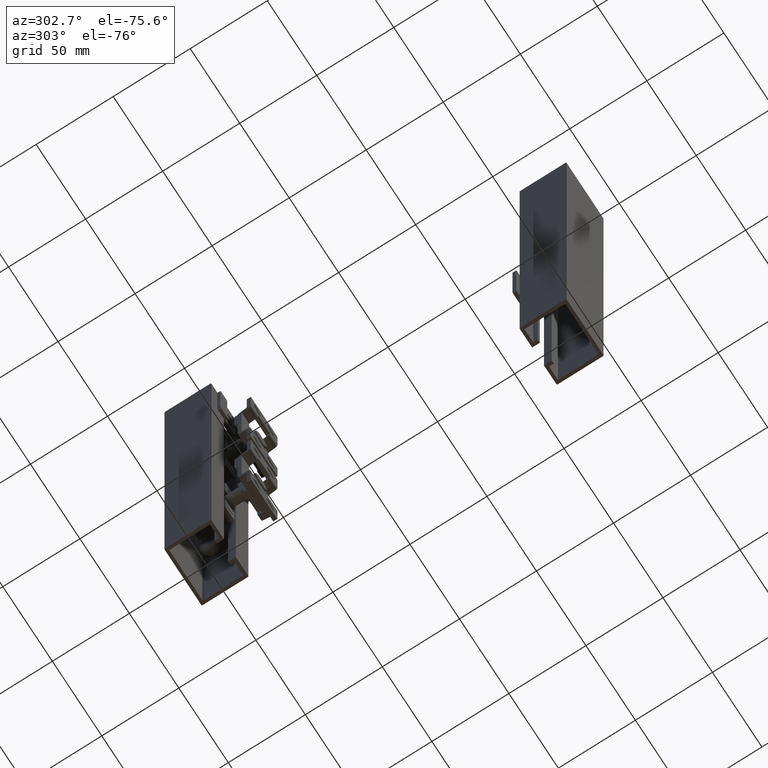
[diagram: clean part render]
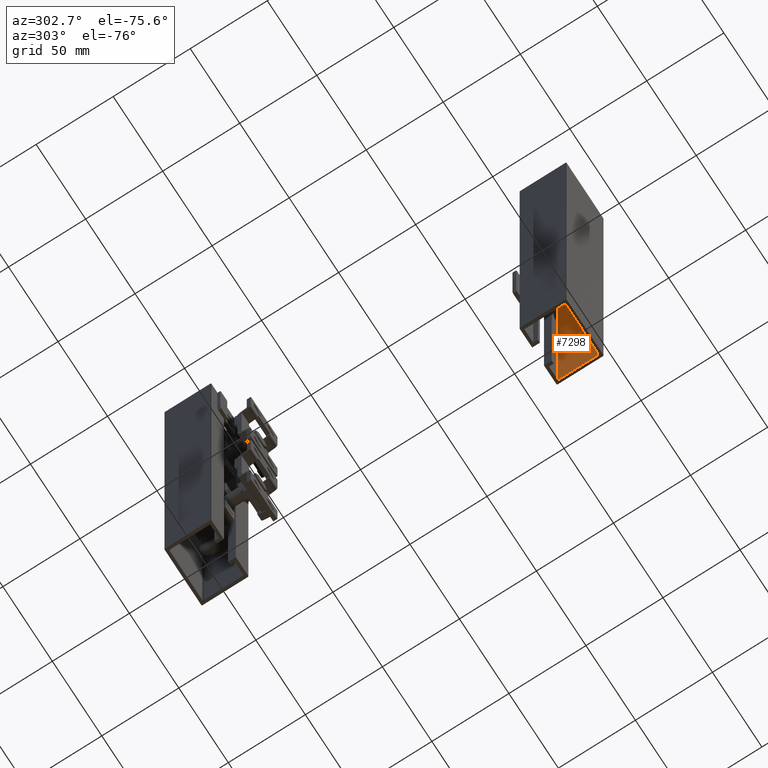
[diagram: same view with one face highlighted and labeled with its STEP entity id]
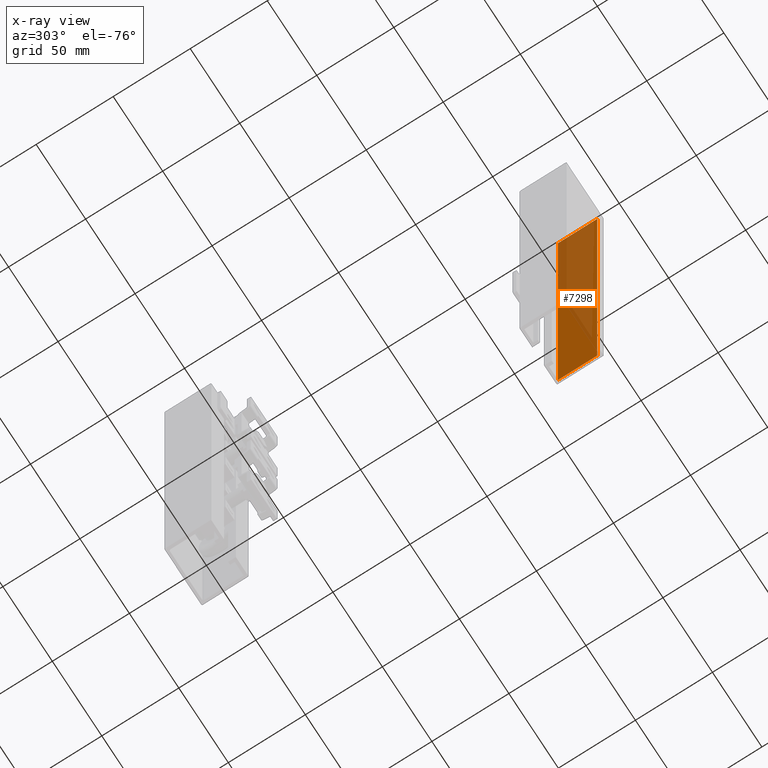
[diagram: x-ray of the same camera — body ghosted, the highlighted face saturated]
A machine part, auxiliary view. The second image highlights one B-rep face of the part: STEP entity #7298.
The next image is the same camera in x-ray: the body ghosted, the highlighted face saturated — about 57% of this face is hidden behind the body in this view.
In plain terms, the highlighted planar face has unit normal (1, 0, -0).
Its self-contained STEP definition (entity closure, byte-faithful):
#287=PLANE('',#7757);
#538=FACE_OUTER_BOUND('',#979,.T.);
#979=EDGE_LOOP('',(#5044,#5045,#5046,#5047));
#1556=LINE('',#10864,#2243);
#1558=LINE('',#10870,#2245);
#1559=LINE('',#10872,#2246);
#1560=LINE('',#10873,#2247);
#2243=VECTOR('',#8565,300.);
#2245=VECTOR('',#8571,25.5);
#2246=VECTOR('',#8572,300.);
#2247=VECTOR('',#8573,25.5);
#3261=VERTEX_POINT('',#10861);
#3262=VERTEX_POINT('',#10863);
#3264=VERTEX_POINT('',#10869);
#3265=VERTEX_POINT('',#10871);
#3991=EDGE_CURVE('',#3261,#3262,#1556,.T.);
#3994=EDGE_CURVE('',#3264,#3261,#1558,.T.);
#3995=EDGE_CURVE('',#3264,#3265,#1559,.F.);
#3996=EDGE_CURVE('',#3262,#3265,#1560,.T.);
#5044=ORIENTED_EDGE('',*,*,#3991,.F.);
#5045=ORIENTED_EDGE('',*,*,#3994,.F.);
#5046=ORIENTED_EDGE('',*,*,#3995,.T.);
#5047=ORIENTED_EDGE('',*,*,#3996,.F.);
#7298=ADVANCED_FACE('',(#538),#287,.F.);
#7757=AXIS2_PLACEMENT_3D('',#10868,#8569,#8570);
#8565=DIRECTION('',(0.,0.,1.));
#8569=DIRECTION('center_axis',(1.,0.,0.));
#8570=DIRECTION('ref_axis',(0.,1.,0.));
#8571=DIRECTION('',(0.,1.,0.));
#8572=DIRECTION('',(0.,0.,-1.));
#8573=DIRECTION('',(0.,-1.,0.));
#10861=CARTESIAN_POINT('',(17.,12.25,-150.));
#10863=CARTESIAN_POINT('',(17.,12.25,150.));
#10864=CARTESIAN_POINT('',(17.,12.25,0.));
#10868=CARTESIAN_POINT('Origin',(17.,-15.25,0.));
#10869=CARTESIAN_POINT('',(17.,-13.25,-150.));
#10870=CARTESIAN_POINT('',(17.,-7.85459183673469,-150.));
#10871=CARTESIAN_POINT('',(17.,-13.25,150.));
#10872=CARTESIAN_POINT('',(17.,-13.25,0.));
#10873=CARTESIAN_POINT('',(17.,-7.85459183673469,150.));